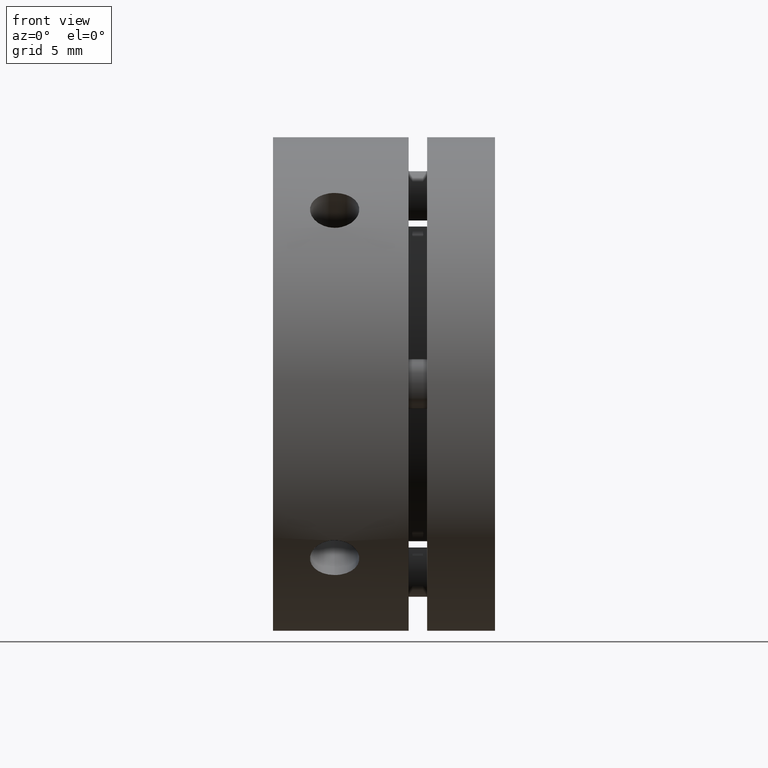
[diagram: clean part render]
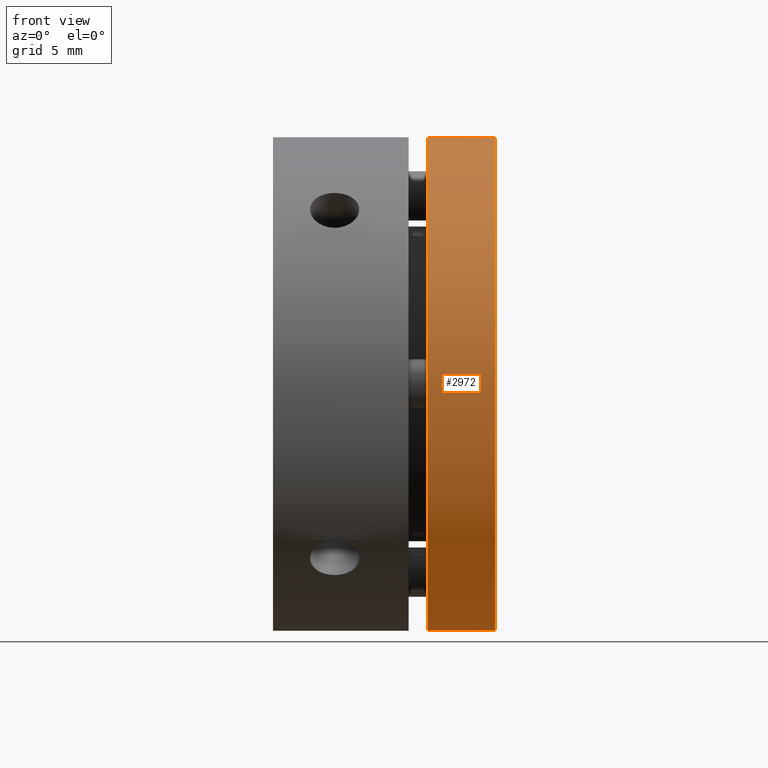
[diagram: same view with one face highlighted and labeled with its STEP entity id]
A machine part, front view. The second image highlights one B-rep face of the part: STEP entity #2972.
In plain terms, the highlighted cylindrical surface (partial cylindrical patch) has radius 20 mm, axis along (1, 0, 0).
Its self-contained STEP definition (entity closure, byte-faithful):
#612 = EDGE_CURVE ( 'NONE', #1878, #1874, #2056, .T. ) ;
#618 = EDGE_CURVE ( 'NONE', #1876, #1311, #2062, .T. ) ;
#661 = EDGE_CURVE ( 'NONE', #1311, #1878, #1523, .T. ) ;
#663 = EDGE_CURVE ( 'NONE', #1876, #1874, #1526, .T. ) ;
#880 = DIRECTION ( 'NONE',  ( 0.0000000000000000000, 0.0000000000000000000, -1.000000000000000000 ) ) ;
#884 = DIRECTION ( 'NONE',  ( 1.000000000000000000, 0.0000000000000000000, 0.0000000000000000000 ) ) ;
#886 = CARTESIAN_POINT ( 'NONE',  ( 8.999999999999994700, 0.0000000000000000000, 0.0000000000000000000 ) ) ;
#1311 = VERTEX_POINT ( 'NONE', #2532 ) ;
#1370 = AXIS2_PLACEMENT_3D ( 'NONE', #886, #884, #880 ) ;
#1496 = ORIENTED_EDGE ( 'NONE', *, *, #663, .F. ) ;
#1498 = ORIENTED_EDGE ( 'NONE', *, *, #612, .T. ) ;
#1500 = ORIENTED_EDGE ( 'NONE', *, *, #661, .T. ) ;
#1501 = ORIENTED_EDGE ( 'NONE', *, *, #618, .T. ) ;
#1523 = LINE ( 'NONE', #3158, #1529 ) ;
#1526 = LINE ( 'NONE', #3155, #1532 ) ;
#1529 = VECTOR ( 'NONE', #3314, 1000.000000000000000 ) ;
#1532 = VECTOR ( 'NONE', #3331, 1000.000000000000000 ) ;
#1874 = VERTEX_POINT ( 'NONE', #2490 ) ;
#1876 = VERTEX_POINT ( 'NONE', #2484 ) ;
#1878 = VERTEX_POINT ( 'NONE', #2481 ) ;
#1948 = EDGE_LOOP ( 'NONE', ( #1496, #1501, #1500, #1498 ) ) ;
#2056 = CIRCLE ( 'NONE', #2261, 19.99999999999999600 ) ;
#2062 = CIRCLE ( 'NONE', #2267, 19.99999999999999600 ) ;
#2261 = AXIS2_PLACEMENT_3D ( 'NONE', #3388, #3389, #3391 ) ;
#2267 = AXIS2_PLACEMENT_3D ( 'NONE', #3421, #3423, #3425 ) ;
#2481 = CARTESIAN_POINT ( 'NONE',  ( 17.99999999999999300, 0.0000000000000000000, -19.99999999999999600 ) ) ;
#2484 = CARTESIAN_POINT ( 'NONE',  ( 12.50000000000000000, 2.449293598294706100E-015, 19.99999999999999600 ) ) ;
#2490 = CARTESIAN_POINT ( 'NONE',  ( 17.99999999999999300, 2.449293598294706100E-015, 19.99999999999999600 ) ) ;
#2532 = CARTESIAN_POINT ( 'NONE',  ( 12.50000000000000000, 0.0000000000000000000, -19.99999999999999600 ) ) ;
#2759 = FACE_OUTER_BOUND ( 'NONE', #1948, .T. ) ;
#2763 = CYLINDRICAL_SURFACE ( 'NONE', #1370, 19.99999999999999600 ) ;
#2972 = ADVANCED_FACE ( 'NONE', ( #2759 ), #2763, .T. ) ;
#3155 = CARTESIAN_POINT ( 'NONE',  ( 8.999999999999994700, 2.449293598294706100E-015, 19.99999999999999600 ) ) ;
#3158 = CARTESIAN_POINT ( 'NONE',  ( 8.999999999999994700, 0.0000000000000000000, -19.99999999999999600 ) ) ;
#3314 = DIRECTION ( 'NONE',  ( 1.000000000000000000, 0.0000000000000000000, 0.0000000000000000000 ) ) ;
#3331 = DIRECTION ( 'NONE',  ( 1.000000000000000000, 0.0000000000000000000, 0.0000000000000000000 ) ) ;
#3388 = CARTESIAN_POINT ( 'NONE',  ( 17.99999999999999300, 0.0000000000000000000, 0.0000000000000000000 ) ) ;
#3389 = DIRECTION ( 'NONE',  ( -1.000000000000000000, -0.0000000000000000000, -0.0000000000000000000 ) ) ;
#3391 = DIRECTION ( 'NONE',  ( 0.0000000000000000000, 0.0000000000000000000, -1.000000000000000000 ) ) ;
#3421 = CARTESIAN_POINT ( 'NONE',  ( 12.50000000000000000, 0.0000000000000000000, 0.0000000000000000000 ) ) ;
#3423 = DIRECTION ( 'NONE',  ( 1.000000000000000000, 0.0000000000000000000, 0.0000000000000000000 ) ) ;
#3425 = DIRECTION ( 'NONE',  ( 0.0000000000000000000, 0.0000000000000000000, -1.000000000000000000 ) ) ;